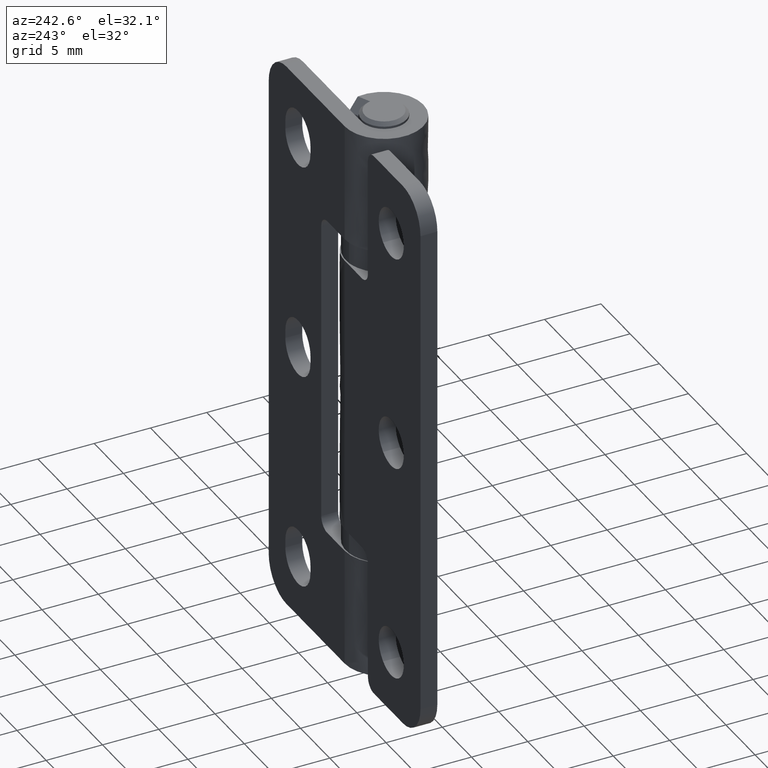
[diagram: clean part render]
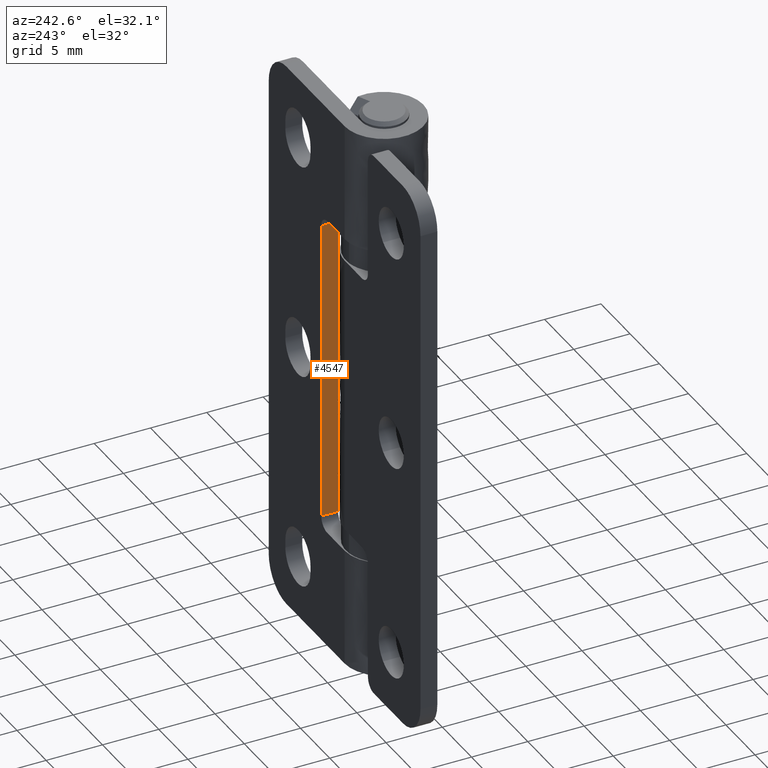
[diagram: same view with one face highlighted and labeled with its STEP entity id]
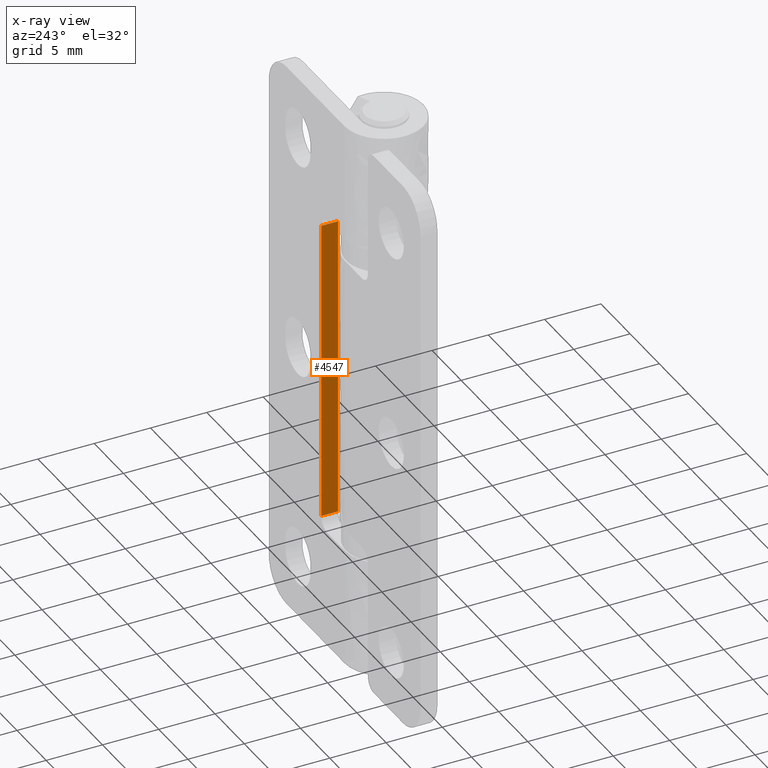
[diagram: x-ray of the same camera — body ghosted, the highlighted face saturated]
A machine part, auxiliary view. The second image highlights one B-rep face of the part: STEP entity #4547.
The next image is the same camera in x-ray: the body ghosted, the highlighted face saturated — about 0% of this face is hidden behind the body in this view.
In plain terms, the highlighted face is a freeform B-spline surface patch.
Its self-contained STEP definition (entity closure, byte-faithful):
#3528=CARTESIAN_POINT('',(3.999999999999430,2.000000000000035,38.500000000000000));
#3529=VERTEX_POINT('',#3528);
#3543=CARTESIAN_POINT('',(3.999999999999430,2.000000000000035,11.500000000000000));
#3544=VERTEX_POINT('',#3543);
#3545=CARTESIAN_POINT('',(3.999999999999430,2.000000000000035,11.500000000000000));
#3546=CARTESIAN_POINT('',(3.999999999999430,2.000000000000035,38.500000000000000));
#3547=QUASI_UNIFORM_CURVE('',1,(#3545,#3546),.UNSPECIFIED.,.F.,.U.);
#3548=EDGE_CURVE('',#3544,#3529,#3547,.T.);
#3830=CARTESIAN_POINT('',(3.999999999999430,3.499999999999950,38.500000000000000));
#3831=VERTEX_POINT('',#3830);
#3845=CARTESIAN_POINT('',(3.999999999999430,2.000000000000035,38.500000000000000));
#3846=CARTESIAN_POINT('',(3.999999999999430,3.499999999999950,38.500000000000000));
#3847=QUASI_UNIFORM_CURVE('',1,(#3845,#3846),.UNSPECIFIED.,.F.,.U.);
#3848=EDGE_CURVE('',#3529,#3831,#3847,.T.);
#3868=CARTESIAN_POINT('',(3.999999999999430,3.499999999999950,11.500000000000000));
#3869=VERTEX_POINT('',#3868);
#3870=CARTESIAN_POINT('',(3.999999999999430,3.499999999999950,11.500000000000000));
#3871=CARTESIAN_POINT('',(3.999999999999430,2.000000000000035,11.500000000000000));
#3872=QUASI_UNIFORM_CURVE('',1,(#3870,#3871),.UNSPECIFIED.,.F.,.U.);
#3873=EDGE_CURVE('',#3869,#3544,#3872,.T.);
#4532=CARTESIAN_POINT('',(3.999999999999431,1.925075002907331,39.848649947668768));
#4533=CARTESIAN_POINT('',(3.999999999999431,1.925075002907331,10.151349328134810));
#4534=CARTESIAN_POINT('',(3.999999999999431,3.574925037325790,39.848649947668768));
#4535=CARTESIAN_POINT('',(3.999999999999430,3.574925037325790,10.151349328134810));
#4536=B_SPLINE_SURFACE_WITH_KNOTS('',1,1,((#4532,#4534),(#4533,#4535)),.UNSPECIFIED.,.F.,.F.,.U.,(2,2),(2,2),(0.0,29.697300619533959),(0.041708334948495,0.958291687403247),.UNSPECIFIED.);
#4537=CARTESIAN_POINT('',(3.999999999999430,3.499999999999950,38.500000000000000));
#4538=CARTESIAN_POINT('',(3.999999999999430,3.499999999999950,11.500000000000000));
#4539=QUASI_UNIFORM_CURVE('',1,(#4537,#4538),.UNSPECIFIED.,.F.,.U.);
#4540=EDGE_CURVE('',#3831,#3869,#4539,.T.);
#4541=ORIENTED_EDGE('',*,*,#4540,.T.);
#4542=ORIENTED_EDGE('',*,*,#3873,.T.);
#4543=ORIENTED_EDGE('',*,*,#3548,.T.);
#4544=ORIENTED_EDGE('',*,*,#3848,.T.);
#4545=EDGE_LOOP('',(#4541,#4542,#4543,#4544));
#4546=FACE_OUTER_BOUND('',#4545,.T.);
#4547=ADVANCED_FACE('',(#4546),#4536,.F.);